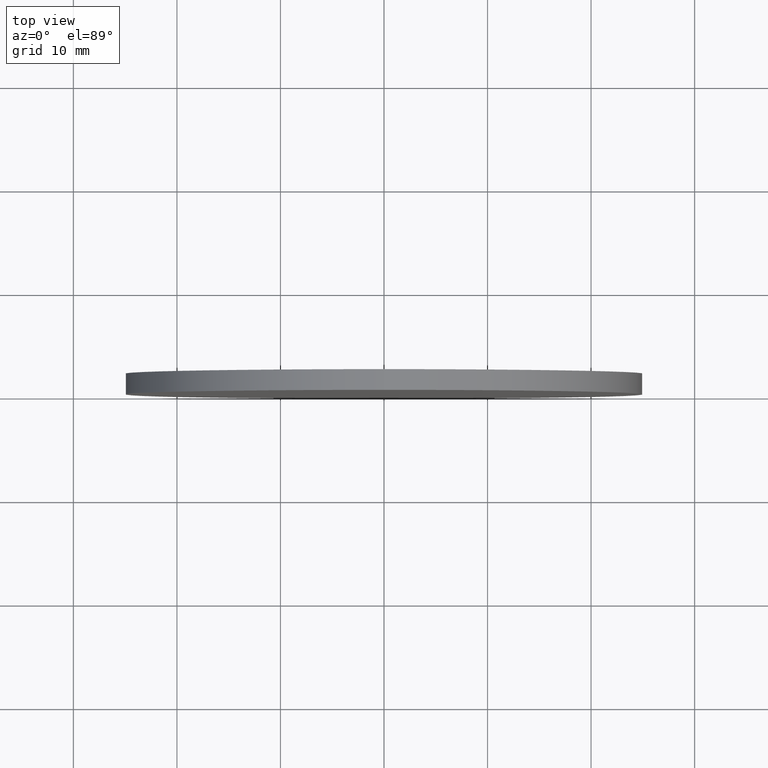
[diagram: clean part render]
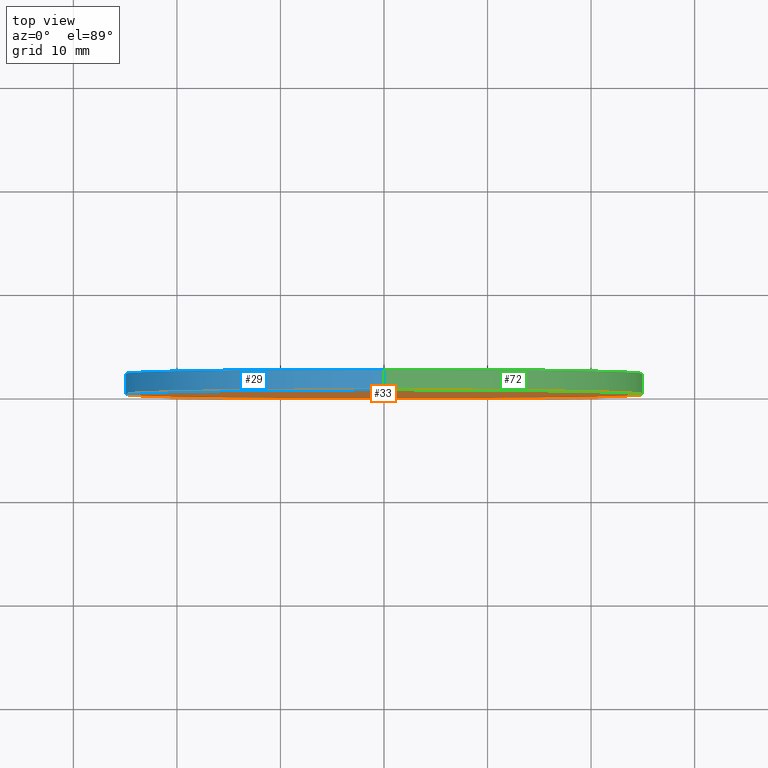
[diagram: same view with three faces highlighted in distinct colors, each labeled with its STEP entity id]
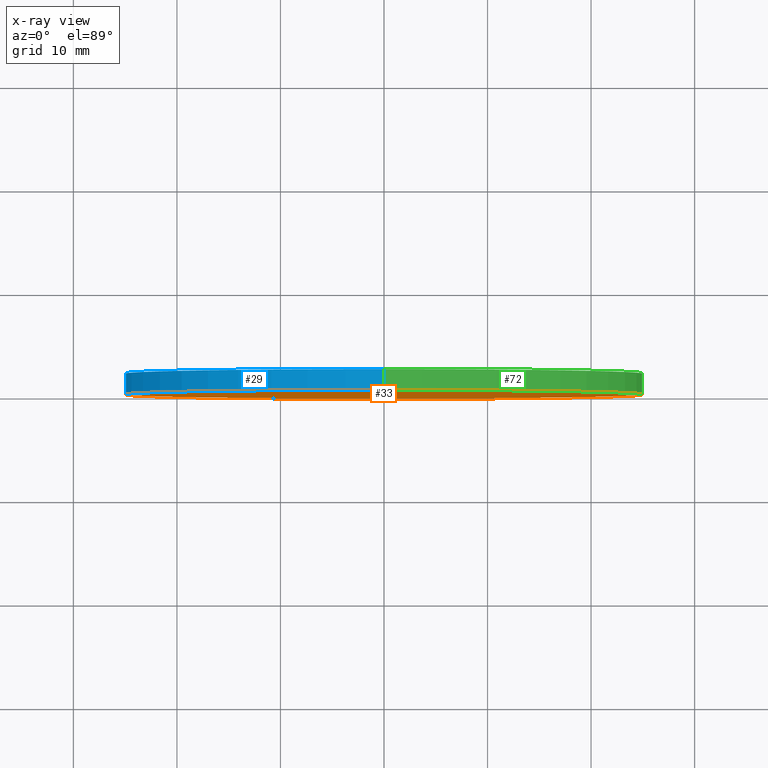
[diagram: x-ray of the same camera — body ghosted, the three highlighted faces saturated]
A machine part, top view with three faces highlighted in distinct colors.
The next image is the same camera in x-ray (body ghosted, the three faces saturated) — at least one of them is partly hidden behind the body in this view.
Their STEP definitions:

[orange] entity #33 — the highlighted planar face has unit normal (0, 1, 0).
#1 = DIRECTION ( 'NONE',  ( 0.0000000000000000000, 1.000000000000000000, 0.0000000000000000000 ) ) ;
#2 = EDGE_CURVE ( 'NONE', #63, #132, #8, .T. ) ;
#7 = AXIS2_PLACEMENT_3D ( 'NONE', #38, #114, #99 ) ;
#8 = CIRCLE ( 'NONE', #117, 25.00000000000000000 ) ;
#11 = DIRECTION ( 'NONE',  ( 0.0000000000000000000, 0.0000000000000000000, 1.000000000000000000 ) ) ;
#17 = CARTESIAN_POINT ( 'NONE',  ( 0.0000000000000000000, 0.0000000000000000000, 0.0000000000000000000 ) ) ;
#19 = CARTESIAN_POINT ( 'NONE',  ( 3.061616997868383000E-015, 0.0000000000000000000, 25.00000000000000000 ) ) ;
#33 = ADVANCED_FACE ( 'NONE', ( #137 ), #101, .F. ) ;
#38 = CARTESIAN_POINT ( 'NONE',  ( 0.0000000000000000000, 0.0000000000000000000, 0.0000000000000000000 ) ) ;
#45 = ORIENTED_EDGE ( 'NONE', *, *, #2, .F. ) ;
#56 = DIRECTION ( 'NONE',  ( 0.0000000000000000000, -0.0000000000000000000, 1.000000000000000000 ) ) ;
#63 = VERTEX_POINT ( 'NONE', #19 ) ;
#77 = DIRECTION ( 'NONE',  ( 0.0000000000000000000, 1.000000000000000000, 0.0000000000000000000 ) ) ;
#81 = CIRCLE ( 'NONE', #7, 25.00000000000000000 ) ;
#82 = AXIS2_PLACEMENT_3D ( 'NONE', #91, #1, #56 ) ;
#83 = ORIENTED_EDGE ( 'NONE', *, *, #94, .F. ) ;
#89 = EDGE_LOOP ( 'NONE', ( #83, #45 ) ) ;
#91 = CARTESIAN_POINT ( 'NONE',  ( 0.0000000000000000000, 0.0000000000000000000, 0.0000000000000000000 ) ) ;
#94 = EDGE_CURVE ( 'NONE', #132, #63, #81, .T. ) ;
#99 = DIRECTION ( 'NONE',  ( 0.0000000000000000000, 0.0000000000000000000, 1.000000000000000000 ) ) ;
#100 = CARTESIAN_POINT ( 'NONE',  ( 0.0000000000000000000, 0.0000000000000000000, -25.00000000000000000 ) ) ;
#101 = PLANE ( 'NONE',  #82 ) ;
#114 = DIRECTION ( 'NONE',  ( 0.0000000000000000000, 1.000000000000000000, 0.0000000000000000000 ) ) ;
#117 = AXIS2_PLACEMENT_3D ( 'NONE', #17, #77, #11 ) ;
#132 = VERTEX_POINT ( 'NONE', #100 ) ;
#137 = FACE_OUTER_BOUND ( 'NONE', #89, .T. ) ;

[blue] entity #29 — the highlighted cylindrical surface (partial cylindrical patch) has radius 25 mm, axis along (-0, -1, -0).
#3 = DIRECTION ( 'NONE',  ( 0.0000000000000000000, 1.000000000000000000, 0.0000000000000000000 ) ) ;
#7 = AXIS2_PLACEMENT_3D ( 'NONE', #38, #114, #99 ) ;
#10 = CARTESIAN_POINT ( 'NONE',  ( 3.061616997868383000E-015, 2.000000000000000000, 25.00000000000000000 ) ) ;
#14 = EDGE_LOOP ( 'NONE', ( #16, #61, #79, #96 ) ) ;
#16 = ORIENTED_EDGE ( 'NONE', *, *, #134, .F. ) ;
#19 = CARTESIAN_POINT ( 'NONE',  ( 3.061616997868383000E-015, 0.0000000000000000000, 25.00000000000000000 ) ) ;
#28 = CARTESIAN_POINT ( 'NONE',  ( 0.0000000000000000000, 2.000000000000000000, 0.0000000000000000000 ) ) ;
#29 = ADVANCED_FACE ( 'NONE', ( #120 ), #121, .T. ) ;
#32 = LINE ( 'NONE', #128, #113 ) ;
#34 = EDGE_CURVE ( 'NONE', #125, #111, #59, .T. ) ;
#38 = CARTESIAN_POINT ( 'NONE',  ( 0.0000000000000000000, 0.0000000000000000000, 0.0000000000000000000 ) ) ;
#46 = DIRECTION ( 'NONE',  ( -0.0000000000000000000, -1.000000000000000000, -0.0000000000000000000 ) ) ;
#47 = DIRECTION ( 'NONE',  ( -0.0000000000000000000, -1.000000000000000000, -0.0000000000000000000 ) ) ;
#59 = CIRCLE ( 'NONE', #109, 25.00000000000000000 ) ;
#60 = EDGE_CURVE ( 'NONE', #125, #132, #32, .T. ) ;
#61 = ORIENTED_EDGE ( 'NONE', *, *, #34, .F. ) ;
#63 = VERTEX_POINT ( 'NONE', #19 ) ;
#64 = CARTESIAN_POINT ( 'NONE',  ( 0.0000000000000000000, 2.000000000000000000, 0.0000000000000000000 ) ) ;
#69 = DIRECTION ( 'NONE',  ( 0.0000000000000000000, 0.0000000000000000000, 1.000000000000000000 ) ) ;
#79 = ORIENTED_EDGE ( 'NONE', *, *, #60, .T. ) ;
#81 = CIRCLE ( 'NONE', #7, 25.00000000000000000 ) ;
#87 = DIRECTION ( 'NONE',  ( -0.0000000000000000000, -1.000000000000000000, -0.0000000000000000000 ) ) ;
#90 = AXIS2_PLACEMENT_3D ( 'NONE', #28, #87, #102 ) ;
#94 = EDGE_CURVE ( 'NONE', #132, #63, #81, .T. ) ;
#96 = ORIENTED_EDGE ( 'NONE', *, *, #94, .T. ) ;
#99 = DIRECTION ( 'NONE',  ( 0.0000000000000000000, 0.0000000000000000000, 1.000000000000000000 ) ) ;
#100 = CARTESIAN_POINT ( 'NONE',  ( 0.0000000000000000000, 0.0000000000000000000, -25.00000000000000000 ) ) ;
#102 = DIRECTION ( 'NONE',  ( 0.0000000000000000000, 0.0000000000000000000, -1.000000000000000000 ) ) ;
#109 = AXIS2_PLACEMENT_3D ( 'NONE', #64, #3, #69 ) ;
#111 = VERTEX_POINT ( 'NONE', #10 ) ;
#113 = VECTOR ( 'NONE', #47, 1000.000000000000000 ) ;
#114 = DIRECTION ( 'NONE',  ( 0.0000000000000000000, 1.000000000000000000, 0.0000000000000000000 ) ) ;
#116 = CARTESIAN_POINT ( 'NONE',  ( 0.0000000000000000000, 2.000000000000000000, -25.00000000000000000 ) ) ;
#120 = FACE_OUTER_BOUND ( 'NONE', #14, .T. ) ;
#121 = CYLINDRICAL_SURFACE ( 'NONE', #90, 25.00000000000000000 ) ;
#123 = LINE ( 'NONE', #139, #133 ) ;
#125 = VERTEX_POINT ( 'NONE', #116 ) ;
#128 = CARTESIAN_POINT ( 'NONE',  ( 0.0000000000000000000, 2.000000000000000000, -25.00000000000000000 ) ) ;
#132 = VERTEX_POINT ( 'NONE', #100 ) ;
#133 = VECTOR ( 'NONE', #46, 1000.000000000000000 ) ;
#134 = EDGE_CURVE ( 'NONE', #111, #63, #123, .T. ) ;
#139 = CARTESIAN_POINT ( 'NONE',  ( 3.061616997868383000E-015, 2.000000000000000000, 25.00000000000000000 ) ) ;

[green] entity #72 — the highlighted cylindrical surface (partial cylindrical patch) has radius 25 mm, axis along (-0, -1, -0).
#2 = EDGE_CURVE ( 'NONE', #63, #132, #8, .T. ) ;
#8 = CIRCLE ( 'NONE', #117, 25.00000000000000000 ) ;
#10 = CARTESIAN_POINT ( 'NONE',  ( 3.061616997868383000E-015, 2.000000000000000000, 25.00000000000000000 ) ) ;
#11 = DIRECTION ( 'NONE',  ( 0.0000000000000000000, 0.0000000000000000000, 1.000000000000000000 ) ) ;
#13 = DIRECTION ( 'NONE',  ( -0.0000000000000000000, -1.000000000000000000, -0.0000000000000000000 ) ) ;
#17 = CARTESIAN_POINT ( 'NONE',  ( 0.0000000000000000000, 0.0000000000000000000, 0.0000000000000000000 ) ) ;
#19 = CARTESIAN_POINT ( 'NONE',  ( 3.061616997868383000E-015, 0.0000000000000000000, 25.00000000000000000 ) ) ;
#20 = EDGE_LOOP ( 'NONE', ( #135, #37, #93, #105 ) ) ;
#32 = LINE ( 'NONE', #128, #113 ) ;
#37 = ORIENTED_EDGE ( 'NONE', *, *, #134, .T. ) ;
#46 = DIRECTION ( 'NONE',  ( -0.0000000000000000000, -1.000000000000000000, -0.0000000000000000000 ) ) ;
#47 = DIRECTION ( 'NONE',  ( -0.0000000000000000000, -1.000000000000000000, -0.0000000000000000000 ) ) ;
#49 = DIRECTION ( 'NONE',  ( 0.0000000000000000000, 0.0000000000000000000, -1.000000000000000000 ) ) ;
#51 = CYLINDRICAL_SURFACE ( 'NONE', #112, 25.00000000000000000 ) ;
#60 = EDGE_CURVE ( 'NONE', #125, #132, #32, .T. ) ;
#63 = VERTEX_POINT ( 'NONE', #19 ) ;
#65 = DIRECTION ( 'NONE',  ( 0.0000000000000000000, 0.0000000000000000000, 1.000000000000000000 ) ) ;
#67 = AXIS2_PLACEMENT_3D ( 'NONE', #126, #75, #65 ) ;
#71 = CIRCLE ( 'NONE', #67, 25.00000000000000000 ) ;
#72 = ADVANCED_FACE ( 'NONE', ( #86 ), #51, .T. ) ;
#75 = DIRECTION ( 'NONE',  ( 0.0000000000000000000, 1.000000000000000000, 0.0000000000000000000 ) ) ;
#77 = DIRECTION ( 'NONE',  ( 0.0000000000000000000, 1.000000000000000000, 0.0000000000000000000 ) ) ;
#86 = FACE_OUTER_BOUND ( 'NONE', #20, .T. ) ;
#88 = CARTESIAN_POINT ( 'NONE',  ( 0.0000000000000000000, 2.000000000000000000, 0.0000000000000000000 ) ) ;
#93 = ORIENTED_EDGE ( 'NONE', *, *, #2, .T. ) ;
#100 = CARTESIAN_POINT ( 'NONE',  ( 0.0000000000000000000, 0.0000000000000000000, -25.00000000000000000 ) ) ;
#105 = ORIENTED_EDGE ( 'NONE', *, *, #60, .F. ) ;
#111 = VERTEX_POINT ( 'NONE', #10 ) ;
#112 = AXIS2_PLACEMENT_3D ( 'NONE', #88, #13, #49 ) ;
#113 = VECTOR ( 'NONE', #47, 1000.000000000000000 ) ;
#116 = CARTESIAN_POINT ( 'NONE',  ( 0.0000000000000000000, 2.000000000000000000, -25.00000000000000000 ) ) ;
#117 = AXIS2_PLACEMENT_3D ( 'NONE', #17, #77, #11 ) ;
#123 = LINE ( 'NONE', #139, #133 ) ;
#124 = EDGE_CURVE ( 'NONE', #111, #125, #71, .T. ) ;
#125 = VERTEX_POINT ( 'NONE', #116 ) ;
#126 = CARTESIAN_POINT ( 'NONE',  ( 0.0000000000000000000, 2.000000000000000000, 0.0000000000000000000 ) ) ;
#128 = CARTESIAN_POINT ( 'NONE',  ( 0.0000000000000000000, 2.000000000000000000, -25.00000000000000000 ) ) ;
#132 = VERTEX_POINT ( 'NONE', #100 ) ;
#133 = VECTOR ( 'NONE', #46, 1000.000000000000000 ) ;
#134 = EDGE_CURVE ( 'NONE', #111, #63, #123, .T. ) ;
#135 = ORIENTED_EDGE ( 'NONE', *, *, #124, .F. ) ;
#139 = CARTESIAN_POINT ( 'NONE',  ( 3.061616997868383000E-015, 2.000000000000000000, 25.00000000000000000 ) ) ;